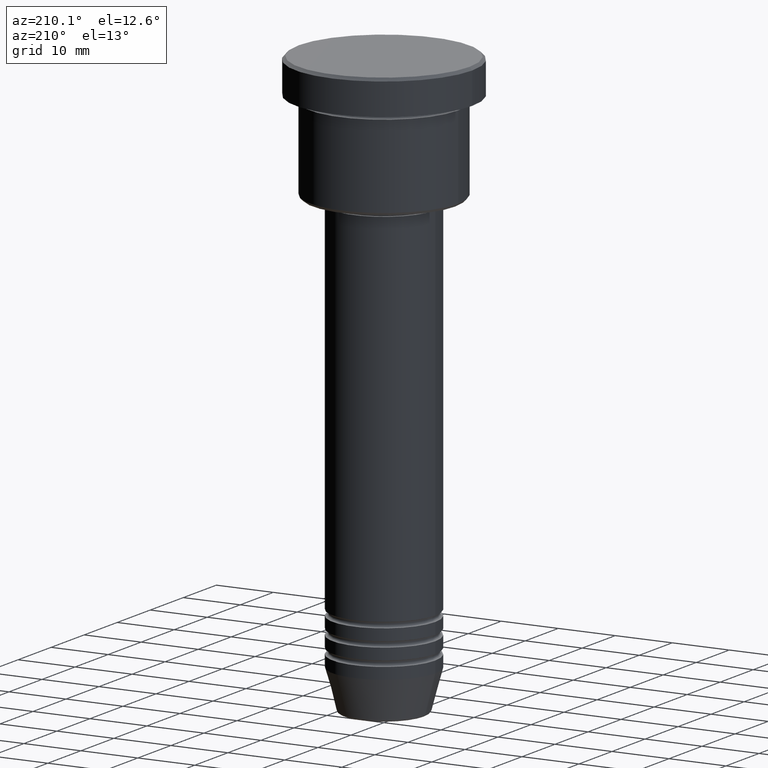
[diagram: clean part render]
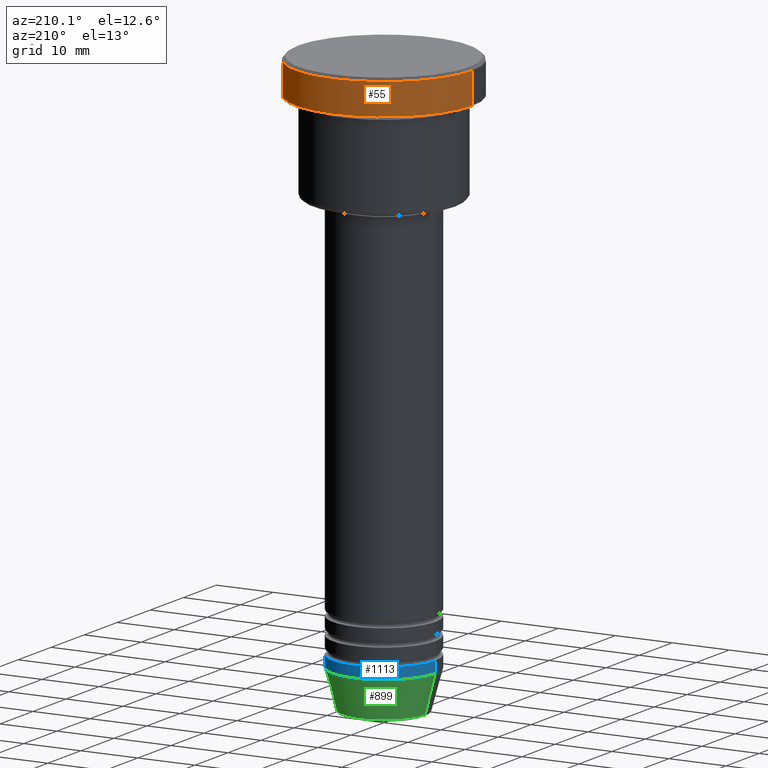
[diagram: same view with three faces highlighted in distinct colors, each labeled with its STEP entity id]
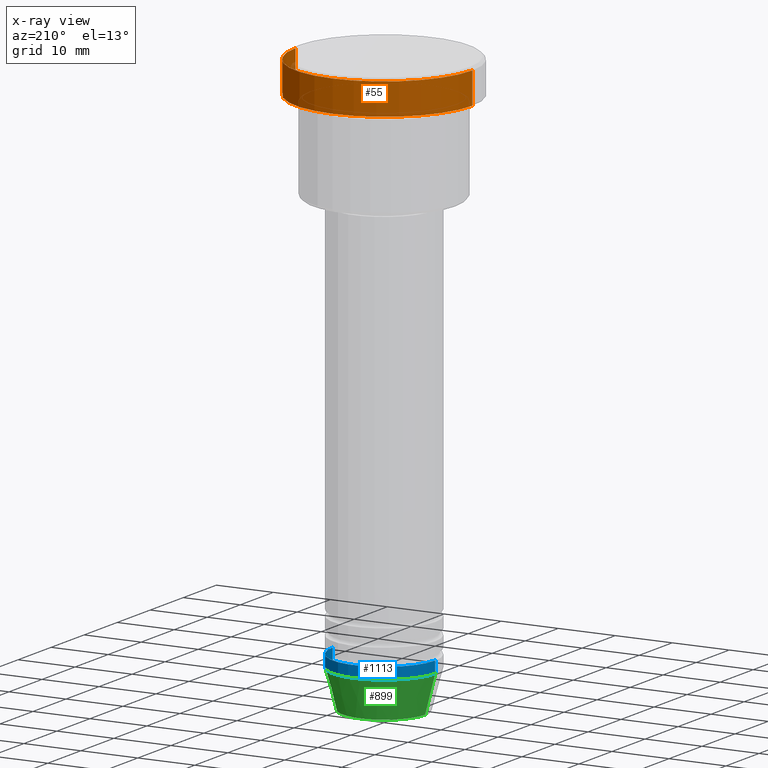
[diagram: x-ray of the same camera — body ghosted, the three highlighted faces saturated]
A machine part, auxiliary view with three faces highlighted in distinct colors.
The next image is the same camera in x-ray (body ghosted, the three faces saturated) — at least one of them is partly hidden behind the body in this view.
Their STEP definitions:

[orange] entity #55 — the highlighted cylindrical surface (partial cylindrical patch) has radius 15.5 mm, axis along (-0, -0, 1).
#55 = ADVANCED_FACE ( 'NONE', ( #525 ), #1171, .T. ) ;
#94 = CIRCLE ( 'NONE', #759, 15.50000000000000000 ) ;
#140 = VERTEX_POINT ( 'NONE', #913 ) ;
#170 = AXIS2_PLACEMENT_3D ( 'NONE', #182, #997, #534 ) ;
#182 = CARTESIAN_POINT ( 'NONE',  ( 0.000000000000000000, 0.000000000000000000, 0.000000000000000000 ) ) ;
#228 = LINE ( 'NONE', #580, #1084 ) ;
#237 = DIRECTION ( 'NONE',  ( 0.000000000000000000, 0.000000000000000000, -1.000000000000000000 ) ) ;
#272 = CARTESIAN_POINT ( 'NONE',  ( 0.000000000000000000, 0.000000000000000000, -5.999999999999995559 ) ) ;
#295 = VERTEX_POINT ( 'NONE', #412 ) ;
#312 = CARTESIAN_POINT ( 'NONE',  ( 0.000000000000000000, 0.000000000000000000, -0.4999999999999987232 ) ) ;
#328 = DIRECTION ( 'NONE',  ( -0.000000000000000000, -0.000000000000000000, 1.000000000000000000 ) ) ;
#339 = ORIENTED_EDGE ( 'NONE', *, *, #1082, .F. ) ;
#359 = LINE ( 'NONE', #994, #431 ) ;
#377 = CARTESIAN_POINT ( 'NONE',  ( -15.50000000000000000, 1.898202538678397557E-15, -5.999999999999995559 ) ) ;
#386 = EDGE_CURVE ( 'NONE', #608, #140, #228, .T. ) ;
#412 = CARTESIAN_POINT ( 'NONE',  ( 15.50000000000000000, 0.000000000000000000, -0.4999999999999987232 ) ) ;
#431 = VECTOR ( 'NONE', #829, 1000.000000000000000 ) ;
#450 = VERTEX_POINT ( 'NONE', #701 ) ;
#525 = FACE_OUTER_BOUND ( 'NONE', #547, .T. ) ;
#534 = DIRECTION ( 'NONE',  ( 1.000000000000000000, 0.000000000000000000, 0.000000000000000000 ) ) ;
#540 = ORIENTED_EDGE ( 'NONE', *, *, #589, .T. ) ;
#542 = AXIS2_PLACEMENT_3D ( 'NONE', #272, #729, #1022 ) ;
#547 = EDGE_LOOP ( 'NONE', ( #540, #897, #781, #339 ) ) ;
#580 = CARTESIAN_POINT ( 'NONE',  ( -15.50000000000000000, 1.898202538678397557E-15, 0.000000000000000000 ) ) ;
#589 = EDGE_CURVE ( 'NONE', #450, #608, #679, .T. ) ;
#608 = VERTEX_POINT ( 'NONE', #377 ) ;
#679 = CIRCLE ( 'NONE', #542, 15.50000000000000000 ) ;
#701 = CARTESIAN_POINT ( 'NONE',  ( 15.50000000000000000, 0.000000000000000000, -5.999999999999995559 ) ) ;
#729 = DIRECTION ( 'NONE',  ( -0.000000000000000000, -0.000000000000000000, 1.000000000000000000 ) ) ;
#759 = AXIS2_PLACEMENT_3D ( 'NONE', #312, #237, #960 ) ;
#781 = ORIENTED_EDGE ( 'NONE', *, *, #819, .T. ) ;
#819 = EDGE_CURVE ( 'NONE', #140, #295, #94, .T. ) ;
#829 = DIRECTION ( 'NONE',  ( -0.000000000000000000, -0.000000000000000000, 1.000000000000000000 ) ) ;
#897 = ORIENTED_EDGE ( 'NONE', *, *, #386, .T. ) ;
#913 = CARTESIAN_POINT ( 'NONE',  ( -15.50000000000000000, 1.898202538678397557E-15, -0.4999999999999987232 ) ) ;
#960 = DIRECTION ( 'NONE',  ( 1.000000000000000000, 0.000000000000000000, 0.000000000000000000 ) ) ;
#994 = CARTESIAN_POINT ( 'NONE',  ( 15.50000000000000000, 0.000000000000000000, 0.000000000000000000 ) ) ;
#997 = DIRECTION ( 'NONE',  ( -0.000000000000000000, -0.000000000000000000, 1.000000000000000000 ) ) ;
#1022 = DIRECTION ( 'NONE',  ( 1.000000000000000000, 0.000000000000000000, 0.000000000000000000 ) ) ;
#1082 = EDGE_CURVE ( 'NONE', #450, #295, #359, .T. ) ;
#1084 = VECTOR ( 'NONE', #328, 1000.000000000000000 ) ;
#1171 = CYLINDRICAL_SURFACE ( 'NONE', #170, 15.50000000000000000 ) ;

[blue] entity #1113 — the highlighted cylindrical surface (partial cylindrical patch) has radius 9 mm, axis along (-0, -0, 1).
#12 = AXIS2_PLACEMENT_3D ( 'NONE', #268, #837, #280 ) ;
#42 = CARTESIAN_POINT ( 'NONE',  ( -9.000000000000000000, 1.102182119232617714E-15, -95.00000000000000000 ) ) ;
#56 = CIRCLE ( 'NONE', #717, 9.000000000000000000 ) ;
#104 = FACE_OUTER_BOUND ( 'NONE', #559, .T. ) ;
#136 = ORIENTED_EDGE ( 'NONE', *, *, #952, .F. ) ;
#198 = DIRECTION ( 'NONE',  ( -0.000000000000000000, -0.000000000000000000, 1.000000000000000000 ) ) ;
#216 = ORIENTED_EDGE ( 'NONE', *, *, #1060, .T. ) ;
#234 = CARTESIAN_POINT ( 'NONE',  ( 0.000000000000000000, 0.000000000000000000, -93.00000000000000000 ) ) ;
#257 = DIRECTION ( 'NONE',  ( -0.000000000000000000, -0.000000000000000000, 1.000000000000000000 ) ) ;
#268 = CARTESIAN_POINT ( 'NONE',  ( 0.000000000000000000, 0.000000000000000000, 0.000000000000000000 ) ) ;
#280 = DIRECTION ( 'NONE',  ( 1.000000000000000000, 0.000000000000000000, 0.000000000000000000 ) ) ;
#314 = DIRECTION ( 'NONE',  ( 1.000000000000000000, 0.000000000000000000, 0.000000000000000000 ) ) ;
#363 = EDGE_CURVE ( 'NONE', #962, #1081, #594, .T. ) ;
#434 = EDGE_CURVE ( 'NONE', #745, #718, #56, .T. ) ;
#510 = DIRECTION ( 'NONE',  ( -0.000000000000000000, -0.000000000000000000, 1.000000000000000000 ) ) ;
#511 = DIRECTION ( 'NONE',  ( 1.000000000000000000, 0.000000000000000000, 0.000000000000000000 ) ) ;
#536 = CARTESIAN_POINT ( 'NONE',  ( -9.000000000000000000, 1.102182119232617714E-15, -93.00000000000000000 ) ) ;
#544 = CARTESIAN_POINT ( 'NONE',  ( -9.000000000000000000, 1.102182119232617714E-15, 0.000000000000000000 ) ) ;
#559 = EDGE_LOOP ( 'NONE', ( #934, #216, #823, #136 ) ) ;
#594 = CIRCLE ( 'NONE', #614, 9.000000000000000000 ) ;
#614 = AXIS2_PLACEMENT_3D ( 'NONE', #234, #1138, #314 ) ;
#705 = CARTESIAN_POINT ( 'NONE',  ( 0.000000000000000000, 0.000000000000000000, -95.00000000000000000 ) ) ;
#717 = AXIS2_PLACEMENT_3D ( 'NONE', #705, #257, #511 ) ;
#718 = VERTEX_POINT ( 'NONE', #42 ) ;
#745 = VERTEX_POINT ( 'NONE', #1136 ) ;
#747 = LINE ( 'NONE', #544, #777 ) ;
#777 = VECTOR ( 'NONE', #198, 1000.000000000000000 ) ;
#823 = ORIENTED_EDGE ( 'NONE', *, *, #363, .F. ) ;
#837 = DIRECTION ( 'NONE',  ( -0.000000000000000000, -0.000000000000000000, 1.000000000000000000 ) ) ;
#934 = ORIENTED_EDGE ( 'NONE', *, *, #434, .T. ) ;
#952 = EDGE_CURVE ( 'NONE', #745, #962, #1169, .T. ) ;
#962 = VERTEX_POINT ( 'NONE', #1078 ) ;
#966 = VECTOR ( 'NONE', #510, 1000.000000000000000 ) ;
#1060 = EDGE_CURVE ( 'NONE', #718, #1081, #747, .T. ) ;
#1073 = CARTESIAN_POINT ( 'NONE',  ( 9.000000000000000000, 0.000000000000000000, 0.000000000000000000 ) ) ;
#1078 = CARTESIAN_POINT ( 'NONE',  ( 9.000000000000000000, 0.000000000000000000, -93.00000000000000000 ) ) ;
#1081 = VERTEX_POINT ( 'NONE', #536 ) ;
#1092 = CYLINDRICAL_SURFACE ( 'NONE', #12, 9.000000000000000000 ) ;
#1113 = ADVANCED_FACE ( 'NONE', ( #104 ), #1092, .T. ) ;
#1136 = CARTESIAN_POINT ( 'NONE',  ( 9.000000000000000000, 0.000000000000000000, -95.00000000000000000 ) ) ;
#1138 = DIRECTION ( 'NONE',  ( -0.000000000000000000, -0.000000000000000000, 1.000000000000000000 ) ) ;
#1169 = LINE ( 'NONE', #1073, #966 ) ;

[green] entity #899 — the highlighted conical surface has half-angle 15 deg.
#4 = CARTESIAN_POINT ( 'NONE',  ( 0.000000000000000000, 0.000000000000000000, -101.6294095225512706 ) ) ;
#42 = CARTESIAN_POINT ( 'NONE',  ( -9.000000000000000000, 1.102182119232617714E-15, -95.00000000000000000 ) ) ;
#56 = CIRCLE ( 'NONE', #717, 9.000000000000000000 ) ;
#90 = VERTEX_POINT ( 'NONE', #979 ) ;
#132 = VECTOR ( 'NONE', #1052, 1000.000000000000000 ) ;
#135 = CIRCLE ( 'NONE', #797, 7.223655072137188604 ) ;
#185 = ORIENTED_EDGE ( 'NONE', *, *, #434, .F. ) ;
#257 = DIRECTION ( 'NONE',  ( -0.000000000000000000, -0.000000000000000000, 1.000000000000000000 ) ) ;
#282 = LINE ( 'NONE', #637, #486 ) ;
#301 = CARTESIAN_POINT ( 'NONE',  ( -9.000000000000000000, 1.102182119232617714E-15, -95.00000000000000000 ) ) ;
#324 = CONICAL_SURFACE ( 'NONE', #358, 9.000000000000000000, 0.2617993877991500740 ) ;
#333 = ORIENTED_EDGE ( 'NONE', *, *, #685, .F. ) ;
#358 = AXIS2_PLACEMENT_3D ( 'NONE', #421, #903, #714 ) ;
#367 = VERTEX_POINT ( 'NONE', #673 ) ;
#421 = CARTESIAN_POINT ( 'NONE',  ( 0.000000000000000000, 0.000000000000000000, -95.00000000000000000 ) ) ;
#434 = EDGE_CURVE ( 'NONE', #745, #718, #56, .T. ) ;
#486 = VECTOR ( 'NONE', #1009, 1000.000000000000000 ) ;
#511 = DIRECTION ( 'NONE',  ( 1.000000000000000000, 0.000000000000000000, 0.000000000000000000 ) ) ;
#548 = DIRECTION ( 'NONE',  ( -0.000000000000000000, -0.000000000000000000, 1.000000000000000000 ) ) ;
#637 = CARTESIAN_POINT ( 'NONE',  ( 9.000000000000000000, 0.000000000000000000, -95.00000000000000000 ) ) ;
#669 = EDGE_LOOP ( 'NONE', ( #690, #1031, #185, #333 ) ) ;
#673 = CARTESIAN_POINT ( 'NONE',  ( -7.223655072137189492, 9.934123627281765110E-16, -101.6294095225512706 ) ) ;
#685 = EDGE_CURVE ( 'NONE', #90, #745, #282, .T. ) ;
#690 = ORIENTED_EDGE ( 'NONE', *, *, #1076, .T. ) ;
#705 = CARTESIAN_POINT ( 'NONE',  ( 0.000000000000000000, 0.000000000000000000, -95.00000000000000000 ) ) ;
#707 = EDGE_CURVE ( 'NONE', #367, #718, #857, .T. ) ;
#714 = DIRECTION ( 'NONE',  ( 1.000000000000000000, 0.000000000000000000, 0.000000000000000000 ) ) ;
#717 = AXIS2_PLACEMENT_3D ( 'NONE', #705, #257, #511 ) ;
#718 = VERTEX_POINT ( 'NONE', #42 ) ;
#745 = VERTEX_POINT ( 'NONE', #1136 ) ;
#797 = AXIS2_PLACEMENT_3D ( 'NONE', #4, #548, #1101 ) ;
#807 = FACE_OUTER_BOUND ( 'NONE', #669, .T. ) ;
#857 = LINE ( 'NONE', #301, #132 ) ;
#899 = ADVANCED_FACE ( 'NONE', ( #807 ), #324, .T. ) ;
#903 = DIRECTION ( 'NONE',  ( -0.000000000000000000, -0.000000000000000000, 1.000000000000000000 ) ) ;
#979 = CARTESIAN_POINT ( 'NONE',  ( 7.223655072137188604, 0.000000000000000000, -101.6294095225512706 ) ) ;
#1009 = DIRECTION ( 'NONE',  ( 0.2588190451025213501, 0.000000000000000000, 0.9659258262890680902 ) ) ;
#1031 = ORIENTED_EDGE ( 'NONE', *, *, #707, .T. ) ;
#1052 = DIRECTION ( 'NONE',  ( -0.2588190451025213501, 3.169619151431772337E-17, 0.9659258262890680902 ) ) ;
#1076 = EDGE_CURVE ( 'NONE', #90, #367, #135, .T. ) ;
#1101 = DIRECTION ( 'NONE',  ( 1.000000000000000000, 0.000000000000000000, 0.000000000000000000 ) ) ;
#1136 = CARTESIAN_POINT ( 'NONE',  ( 9.000000000000000000, 0.000000000000000000, -95.00000000000000000 ) ) ;